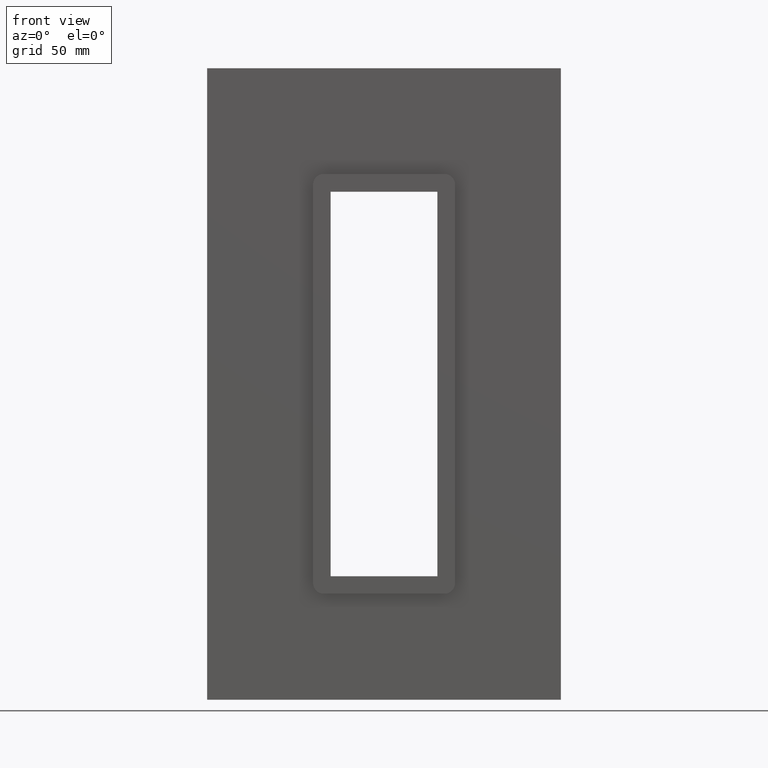
[diagram: clean part render]
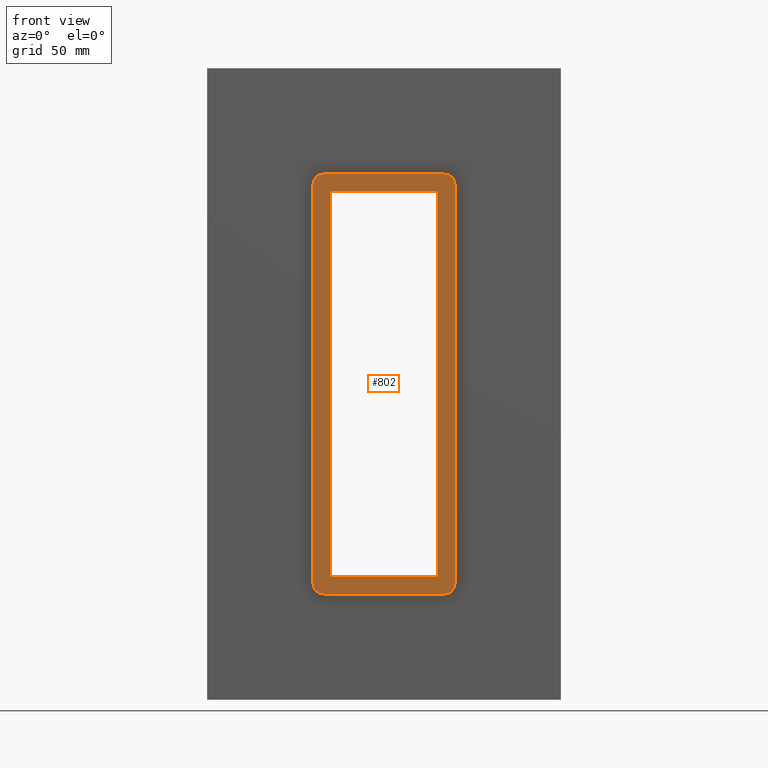
[diagram: same view with one face highlighted and labeled with its STEP entity id]
A machine part, front view. The second image highlights one B-rep face of the part: STEP entity #802.
In plain terms, the highlighted planar face has unit normal (0, 1, 0).
Its self-contained STEP definition (entity closure, byte-faithful):
#361=CARTESIAN_POINT('',(-30.250000000000004,-5.0,108.99999999999999));
#362=VERTEX_POINT('',#361);
#371=CARTESIAN_POINT('',(-30.250000000000004,-5.0,-108.99999999999999));
#372=VERTEX_POINT('',#371);
#373=CARTESIAN_POINT('',(-30.250000000000004,-5.0,-108.99999999999999));
#374=DIRECTION('',(0.0,0.0,1.0));
#375=VECTOR('',#374,217.99999999999994);
#376=LINE('',#373,#375);
#377=EDGE_CURVE('',#372,#362,#376,.T.);
#402=CARTESIAN_POINT('',(-34.250000000000043,-5.0,-119.00000000000003));
#403=VERTEX_POINT('',#402);
#410=CARTESIAN_POINT('',(-40.250000000000021,-5.0,-113.0));
#411=VERTEX_POINT('',#410);
#412=CARTESIAN_POINT('',(-34.250000000000043,-5.0,-113.0));
#413=DIRECTION('',(0.0,-1.0,0.0));
#414=DIRECTION('',(0.0,0.0,-1.0));
#415=AXIS2_PLACEMENT_3D('',#412,#413,#414);
#416=CIRCLE('',#415,6.000000000000014);
#417=EDGE_CURVE('',#411,#403,#416,.T.);
#467=CARTESIAN_POINT('',(-40.250000000000021,-5.0,113.0));
#468=VERTEX_POINT('',#467);
#469=CARTESIAN_POINT('',(-40.250000000000021,-5.0,113.0));
#470=DIRECTION('',(0.0,0.0,-1.0));
#471=VECTOR('',#470,226.0);
#472=LINE('',#469,#471);
#473=EDGE_CURVE('',#468,#411,#472,.T.);
#514=CARTESIAN_POINT('',(34.250000000000043,-5.0,-119.00000000000003));
#515=VERTEX_POINT('',#514);
#522=CARTESIAN_POINT('',(-34.250000000000043,-5.0,-119.00000000000003));
#523=DIRECTION('',(1.0,0.0,0.0));
#524=VECTOR('',#523,68.500000000000085);
#525=LINE('',#522,#524);
#526=EDGE_CURVE('',#403,#515,#525,.T.);
#539=CARTESIAN_POINT('',(-34.250000000000043,-5.0,118.99999999999999));
#540=VERTEX_POINT('',#539);
#541=CARTESIAN_POINT('',(-34.250000000000043,-5.0,113.0));
#542=DIRECTION('',(0.0,-1.0,0.0));
#543=DIRECTION('',(-1.0,0.0,0.0));
#544=AXIS2_PLACEMENT_3D('',#541,#542,#543);
#545=CIRCLE('',#544,6.000000000000014);
#546=EDGE_CURVE('',#540,#468,#545,.T.);
#588=CARTESIAN_POINT('',(40.249999999999986,-5.0,-113.0));
#589=VERTEX_POINT('',#588);
#596=CARTESIAN_POINT('',(34.250000000000043,-5.0,-113.0));
#597=DIRECTION('',(0.0,-1.0,0.0));
#598=DIRECTION('',(1.0,0.0,0.0));
#599=AXIS2_PLACEMENT_3D('',#596,#597,#598);
#600=CIRCLE('',#599,6.000000000000014);
#601=EDGE_CURVE('',#515,#589,#600,.T.);
#614=CARTESIAN_POINT('',(34.250000000000043,-5.0,118.99999999999999));
#615=VERTEX_POINT('',#614);
#616=CARTESIAN_POINT('',(34.250000000000043,-5.0,118.99999999999999));
#617=DIRECTION('',(-1.0,0.0,0.0));
#618=VECTOR('',#617,68.500000000000085);
#619=LINE('',#616,#618);
#620=EDGE_CURVE('',#615,#540,#619,.T.);
#661=CARTESIAN_POINT('',(40.249999999999986,-5.0,113.0));
#662=VERTEX_POINT('',#661);
#669=CARTESIAN_POINT('',(40.249999999999986,-5.0,-113.0));
#670=DIRECTION('',(0.0,0.0,1.0));
#671=VECTOR('',#670,226.0);
#672=LINE('',#669,#671);
#673=EDGE_CURVE('',#589,#662,#672,.T.);
#686=CARTESIAN_POINT('',(34.250000000000043,-5.0,113.0));
#687=DIRECTION('',(0.0,-1.0,0.0));
#688=DIRECTION('',(0.0,0.0,1.0));
#689=AXIS2_PLACEMENT_3D('',#686,#687,#688);
#690=CIRCLE('',#689,6.000000000000014);
#691=EDGE_CURVE('',#662,#615,#690,.T.);
#702=CARTESIAN_POINT('',(30.250000000000021,-5.0,108.99999999999999));
#703=VERTEX_POINT('',#702);
#720=CARTESIAN_POINT('',(30.250000000000021,-5.0,-108.99999999999999));
#721=VERTEX_POINT('',#720);
#728=CARTESIAN_POINT('',(30.250000000000021,-5.0,108.99999999999999));
#729=DIRECTION('',(0.0,0.0,-1.0));
#730=VECTOR('',#729,217.99999999999994);
#731=LINE('',#728,#730);
#732=EDGE_CURVE('',#703,#721,#731,.T.);
#750=CARTESIAN_POINT('',(-30.250000000000004,-5.0,108.99999999999999));
#751=DIRECTION('',(1.0,0.0,0.0));
#752=VECTOR('',#751,60.500000000000028);
#753=LINE('',#750,#752);
#754=EDGE_CURVE('',#362,#703,#753,.T.);
#765=CARTESIAN_POINT('',(30.250000000000021,-5.0,-108.99999999999999));
#766=DIRECTION('',(-1.0,0.0,0.0));
#767=VECTOR('',#766,60.500000000000028);
#768=LINE('',#765,#767);
#769=EDGE_CURVE('',#721,#372,#768,.T.);
#781=CARTESIAN_POINT('',(-1.381317E-014,-5.0,-6.259091E-015));
#782=DIRECTION('',(0.0,1.0,0.0));
#783=DIRECTION('',(0.0,0.0,1.0));
#784=AXIS2_PLACEMENT_3D('',#781,#782,#783);
#785=PLANE('',#784);
#786=ORIENTED_EDGE('',*,*,#673,.T.);
#787=ORIENTED_EDGE('',*,*,#691,.T.);
#788=ORIENTED_EDGE('',*,*,#620,.T.);
#789=ORIENTED_EDGE('',*,*,#546,.T.);
#790=ORIENTED_EDGE('',*,*,#473,.T.);
#791=ORIENTED_EDGE('',*,*,#417,.T.);
#792=ORIENTED_EDGE('',*,*,#526,.T.);
#793=ORIENTED_EDGE('',*,*,#601,.T.);
#794=EDGE_LOOP('',(#786,#787,#788,#789,#790,#791,#792,#793));
#795=FACE_OUTER_BOUND('',#794,.T.);
#796=ORIENTED_EDGE('',*,*,#732,.T.);
#797=ORIENTED_EDGE('',*,*,#769,.T.);
#798=ORIENTED_EDGE('',*,*,#377,.T.);
#799=ORIENTED_EDGE('',*,*,#754,.T.);
#800=EDGE_LOOP('',(#796,#797,#798,#799));
#801=FACE_BOUND('',#800,.T.);
#802=ADVANCED_FACE('',(#795,#801),#785,.F.);